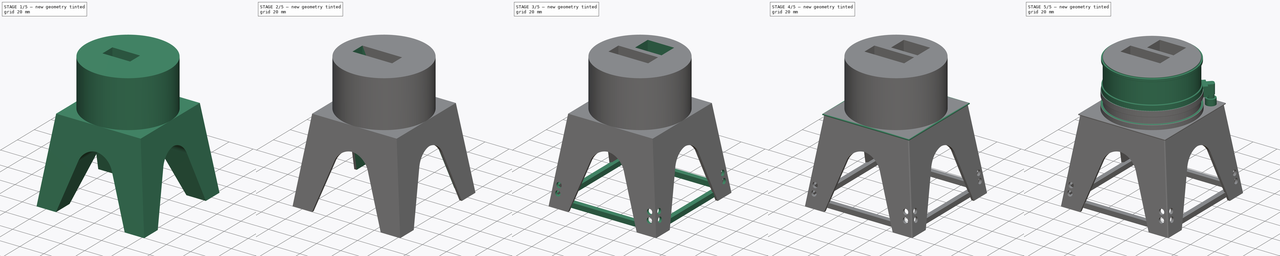
[diagram: build sequence overview — one tinted view per stage of 5, left to right]
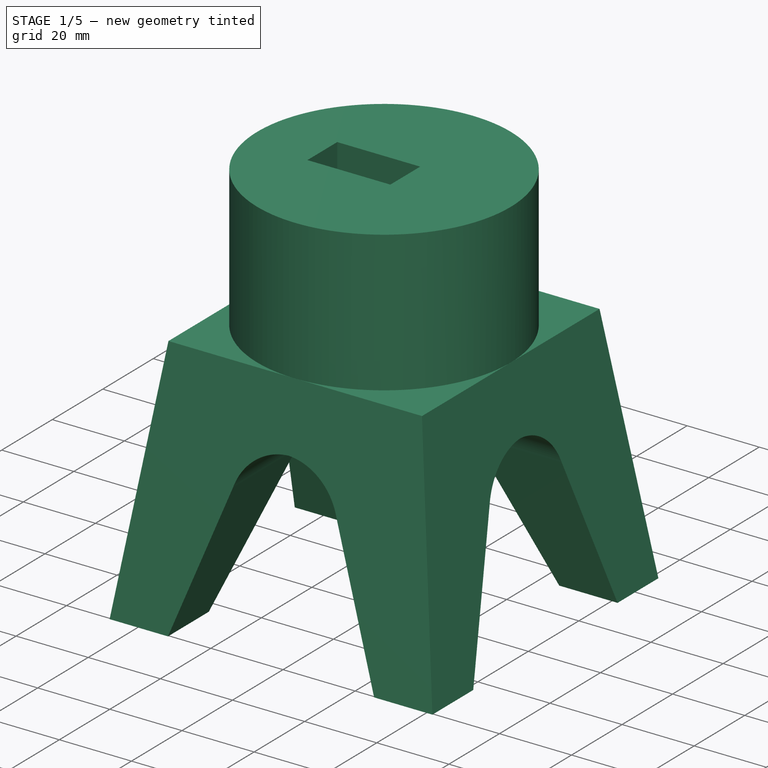
[diagram: stage 1 of 5 — iso view after this stage's code; geometry added in this stage tinted green]
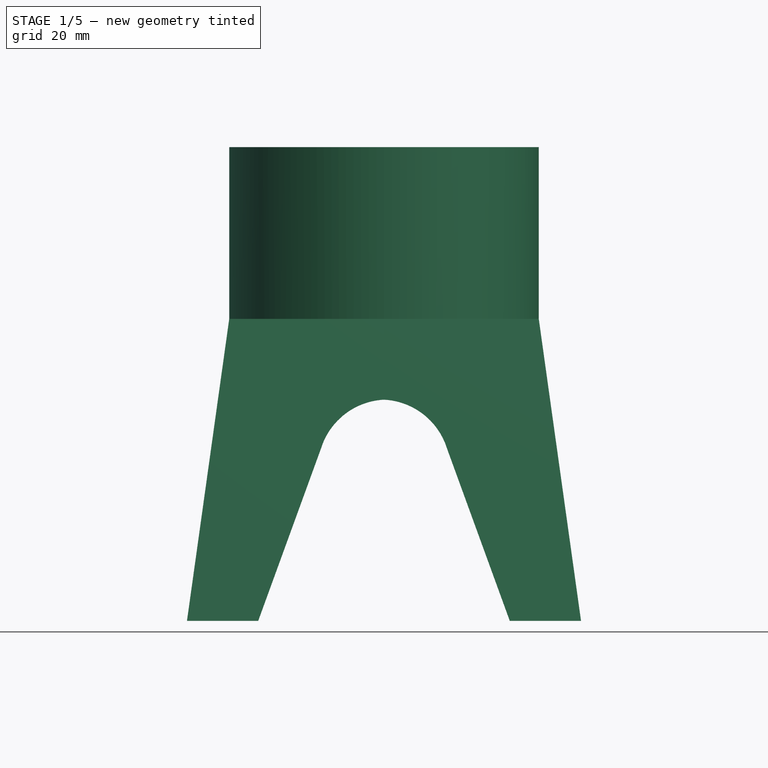
[diagram: stage 1 of 5 — front view after this stage's code; geometry added in this stage tinted green]
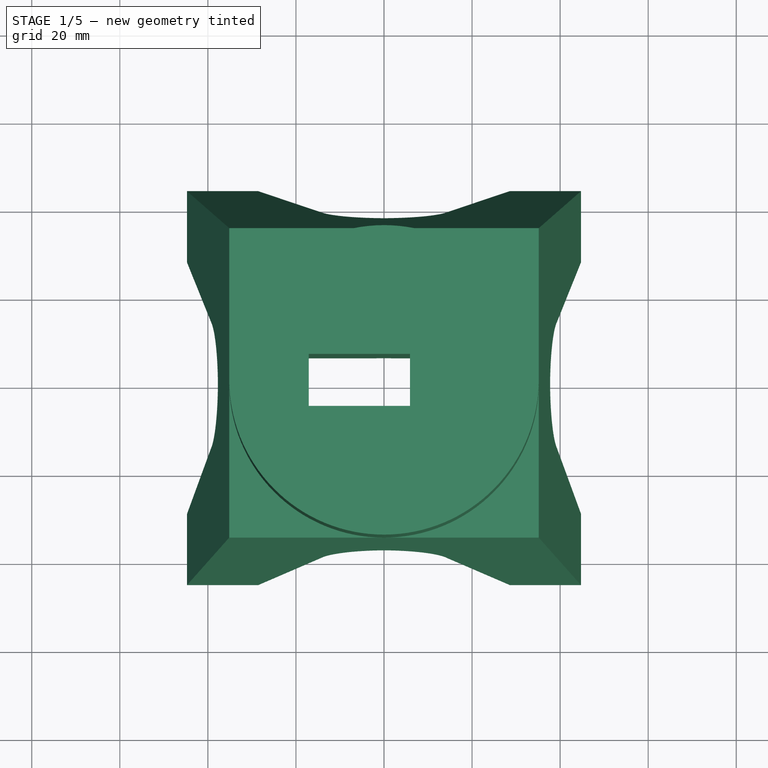
[diagram: stage 1 of 5 — top view after this stage's code; geometry added in this stage tinted green]
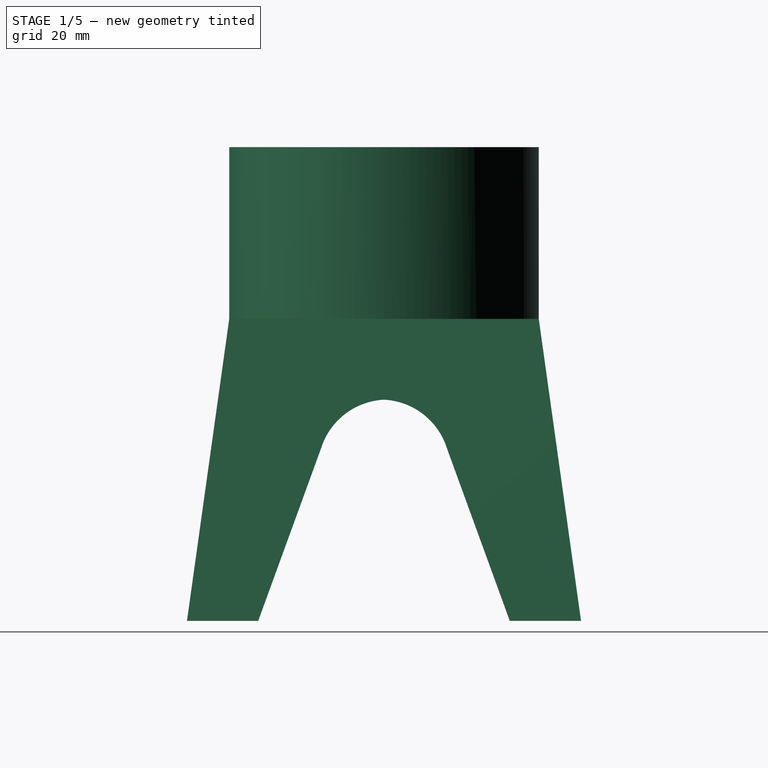
[diagram: stage 1 of 5 — right view after this stage's code; geometry added in this stage tinted green]
FCSTD DOCUMENT  (FreeCAD 1.0R39109 (Git))
Label: FinalsTurretBase
License: All rights reserved
LicenseURL: https://en.wikipedia.org/wiki/All_rights_reserved
objects: Sketcher::SketchObject×21, PartDesign::Pad×9, PartDesign::Pocket×7, PartDesign::PolarPattern×4, PartDesign::Plane×4, PartDesign::Fillet×3, Image::ImagePlane×2, PartDesign::SubtractiveLoft×1, PartDesign::Groove×1, PartDesign::Body×1
note: 118 computed .brp shape members not serialized (recipe doc carries the construction recipe); baked Part::Feature solids carry a one-line shape summary decoded from their .brp

FEATURE [Image::ImagePlane] The_Finals_Screenshot_2025  label="The Finals Screenshot 2025"
  Placement = pos=(0,0,0) rot=(1,0,0;1.5708rad)
  XSize = 753.991
  YSize = 424.123
FEATURE [Image::ImagePlane] The_Finals_Screenshot_2026  label="The Finals Screenshot 2026"
  Placement = pos=(0,0,0) rot=(0.57735,0.57735,0.57735;2.0944rad)
  XSize = 754.24
  YSize = 424.26
FEATURE [Sketcher::SketchObject] Sketch
  ArcFitTolerance = 1e-06
  AttachmentSupport = -> [YZ_Plane]
  FullyConstrained = false
  MakeInternals = false
  MapMode = 5
  Placement = pos=(0,0,0) rot=(0.57735,0.57735,0.57735;2.0944rad)
  sketch-geometry (7):
    g0: LineSegment [constr] StartX=0 StartY=-143.198 StartZ=0 EndX=0 EndY=131.199 EndZ=0
    g1: LineSegment StartX=0 StartY=-58.7183 StartZ=0 EndX=35.148 EndY=-58.7183 EndZ=0
    g2: LineSegment StartX=35.148 StartY=-58.7183 StartZ=0 EndX=44.7448 EndY=-127.308 EndZ=0
    g3: LineSegment StartX=44.7448 StartY=-127.308 StartZ=0 EndX=28.586 EndY=-127.308 EndZ=0
    g4: LineSegment StartX=28.586 StartY=-127.308 StartZ=0 EndX=14.3111 EndY=-88.1703 EndZ=0
    g5: ArcOfCircle CenterX=-0.783438 CenterY=-92.8633 CenterZ=0 NormalX=0 NormalY=0 NormalZ=1 AngleXU=0 Radius=15.8072 StartAngle=0.301432 EndAngle=1.52121
    g6: LineSegment StartX=0 StartY=-77.0755 StartZ=0 EndX=0 EndY=-58.7183 EndZ=0
  constraints (12):
    c: PointOnObject(g0,g-2)
    c: PointOnObject(g0,g-2)
    c: PointOnObject(g1,g0)
    c: Horizontal(g1)
    c: Coincident(g1,g2)
    c: Coincident(g2,g3)
    c: Horizontal(g3)
    c: Coincident(g3,g4)
    c: Coincident(g5,g4)
    c: PointOnObject(g5,g0)
    c: Coincident(g6,g5)
    c: Coincident(g6,g1)
FEATURE [PartDesign::Pad] Pad
  Direction = (1,0,0)
  Length = 51
  Length2 = 10
  Placement = pos=(0,0,0) rot=(1,1,1;2.0944rad)
  Profile = -> Sketch
  ReferenceAxis = -> Sketch [N_Axis]
  Refine = true
  Suppressed = false
  Type = 0
FEATURE [Sketcher::SketchObject] Sketch002
  ArcFitTolerance = 1e-06
  AttachmentSupport = -> [Pad]
  FullyConstrained = false
  MakeInternals = false
  MapMode = 5
  Placement = pos=(0,0,0) rot=(0.57735,0.57735,-0.57735;2.0944rad)
  sketch-geometry (8):
    g0: LineSegment StartX=127.358 StartY=28.586 StartZ=0 EndX=88.1703 EndY=14.3111 EndZ=0
    g1: ArcOfCircle CenterX=92.8633 CenterY=-0.783438 CenterZ=0 NormalX=0 NormalY=0 NormalZ=1 AngleXU=0 Radius=15.8072 StartAngle=1.87223 EndAngle=3.09201
    g2: LineSegment StartX=127.358 StartY=-5.47e-14 StartZ=0 EndX=77.0755 EndY=-5.47e-14 EndZ=0
    g3: LineSegment StartX=127.31 StartY=44.74 StartZ=0 EndX=127.31 EndY=56.73 EndZ=0
    g4: LineSegment StartX=127.31 StartY=56.73 StartZ=0 EndX=56.4588 EndY=56.73 EndZ=0
    g5: LineSegment StartX=56.4588 StartY=56.73 StartZ=0 EndX=56.4588 EndY=34.833 EndZ=0
    g6: LineSegment StartX=127.358 StartY=-5.47e-14 StartZ=0 EndX=127.358 EndY=28.586 EndZ=0
    g7: LineSegment StartX=127.31 StartY=44.74 StartZ=0 EndX=56.4588 EndY=34.833 EndZ=0
  constraints (17):
    c: Coincident(g1,g0)
    c: Coincident(g2,g1)
    c: Horizontal(g2)
    c: Vertical(g3)
    c: Coincident(g4,g3)
    c: Horizontal(g4)
    c: Coincident(g5,g4)
    c: Vertical(g5)
    c: Coincident(g6,g2)
    c: Coincident(g6,g0)
    c: Vertical(g6)
    c: Coincident(g7,g3)
    c: Coincident(g7,g5)
    c: DistanceY(g3,g3) = 11.99
    c: Distance(g4,g-1) = 56.73
    c: Angle(g3,g7) = 1.70972
    c: DistanceX(g-1,g3) = 127.31
FEATURE [PartDesign::Pocket] Pocket
  BaseFeature = -> Pad
  Direction = (0,1,0)
  Length = 60
  Length2 = 5
  Placement = pos=(0,0,0) rot=(1,1,1;2.0944rad)
  Profile = -> Sketch002
  ReferenceAxis = -> Sketch002 [N_Axis]
  Refine = true
  Suppressed = false
  Type = 0
FEATURE [PartDesign::PolarPattern] PolarPattern
  Angle = 360
  Axis = -> Z_Axis
  BaseFeature = -> Pocket
  Mode = 0
  Occurrences = 4
  Offset = 120
  Originals = -> [Pocket]
  Placement = pos=(0,0,0) rot=(1,1,1;2.0944rad)
  Refine = true
  Suppressed = false
  TransformMode = 1
FEATURE [Sketcher::SketchObject] Sketch003
  ArcFitTolerance = 1e-06
  AttachmentSupport = -> [PolarPattern]
  ExternalGeometry = -> [PolarPattern]
  FullyConstrained = true
  MakeInternals = false
  MapMode = 5
  Placement = pos=(0,0,-58.7183) rot=(0,0,-1;1.5708rad)
  sketch-geometry (1):
    g0: Circle CenterX=0 CenterY=0 CenterZ=0 NormalX=0 NormalY=0 NormalZ=1 AngleXU=0 Radius=35.148
  constraints (2):
    c: Coincident(g0,g-1)
    c: PointOnObject(g-10,g0)
FEATURE [PartDesign::Pad] Pad001
  BaseFeature = -> PolarPattern
  Direction = (0,0,1)
  Length = 39
  Length2 = 10
  Placement = pos=(0,0,0) rot=(1,1,1;2.0944rad)
  Profile = -> Sketch003
  ReferenceAxis = -> Sketch003 [N_Axis]
  Refine = true
  Suppressed = false
  Type = 0
FEATURE [Sketcher::SketchObject] Sketch004
  ArcFitTolerance = 1e-06
  AttachmentSupport = -> [Pad001]
  FullyConstrained = false
  MakeInternals = false
  MapMode = 5
  Placement = pos=(0,0,-19.7183) rot=(0,0,-1;1.5708rad)
  sketch-geometry (6):
    g0: LineSegment StartX=-5.9 StartY=5.9 StartZ=0 EndX=-5.9 EndY=-17.1 EndZ=0
    g1: LineSegment StartX=-5.9 StartY=-17.1 StartZ=0 EndX=5.9 EndY=-17.1 EndZ=0
    g2: LineSegment StartX=5.9 StartY=-17.1 StartZ=0 EndX=5.9 EndY=5.9 EndZ=0
    g3: LineSegment StartX=5.9 StartY=5.9 StartZ=0 EndX=-5.9 EndY=5.9 EndZ=0
    g4: LineSegment [constr] StartX=-5.9 StartY=-4.70836 StartZ=0 EndX=0 EndY=-4.70836 EndZ=0
    g5: LineSegment [constr] StartX=0 StartY=-4.70836 StartZ=0 EndX=5.9 EndY=-4.70836 EndZ=0
  constraints (18):
    c: Coincident(g0,g1)
    c: Coincident(g1,g2)
    c: Coincident(g2,g3)
    c: Coincident(g3,g0)
    c: Vertical(g0)
    c: Vertical(g2)
    c: Horizontal(g1)
    c: Horizontal(g3)
    c: PointOnObject(g4,g0)
    c: PointOnObject(g4,g-2)
    c: Horizontal(g4)
    c: Coincident(g5,g4)
    c: PointOnObject(g5,g2)
    c: Horizontal(g5)
    c: Equal(g4,g5)
    c: DistanceX(g3,g3) = 11.8
    c: DistanceY(g2,g2) = 23
    c: Distance(g-1,g3) = 5.9
FEATURE [PartDesign::Pocket] Pocket001
  BaseFeature = -> Pad001
  Direction = (0,0,-1)
  Length = 5
  Length2 = 5
  Placement = pos=(0,0,0) rot=(1,1,1;2.0944rad)
  Profile = -> Sketch004
  ReferenceAxis = -> Sketch004 [N_Axis]
  Refine = true
  Suppressed = false
  Type = 1
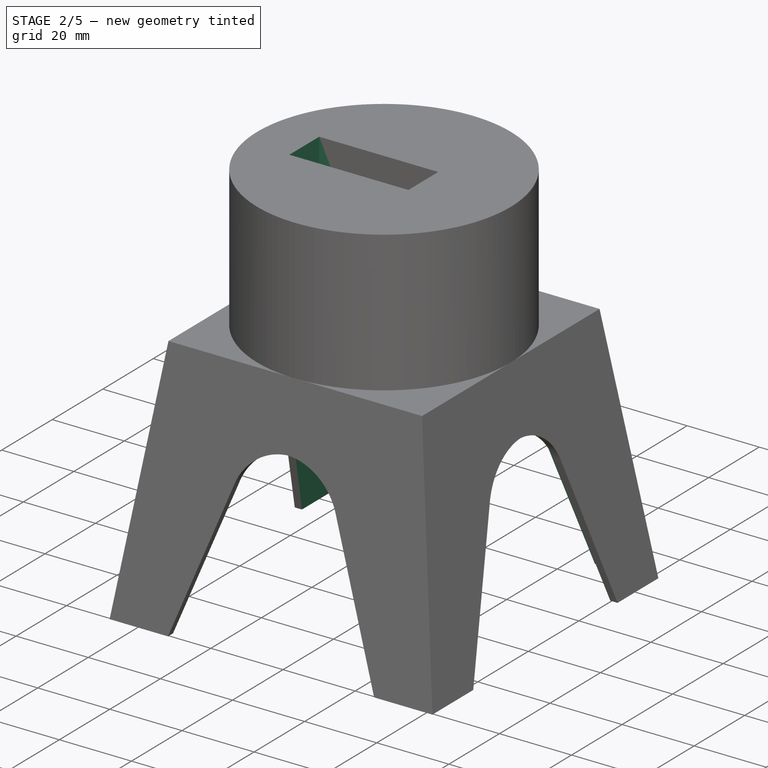
[diagram: stage 2 of 5 — iso view after this stage's code; geometry added in this stage tinted green]
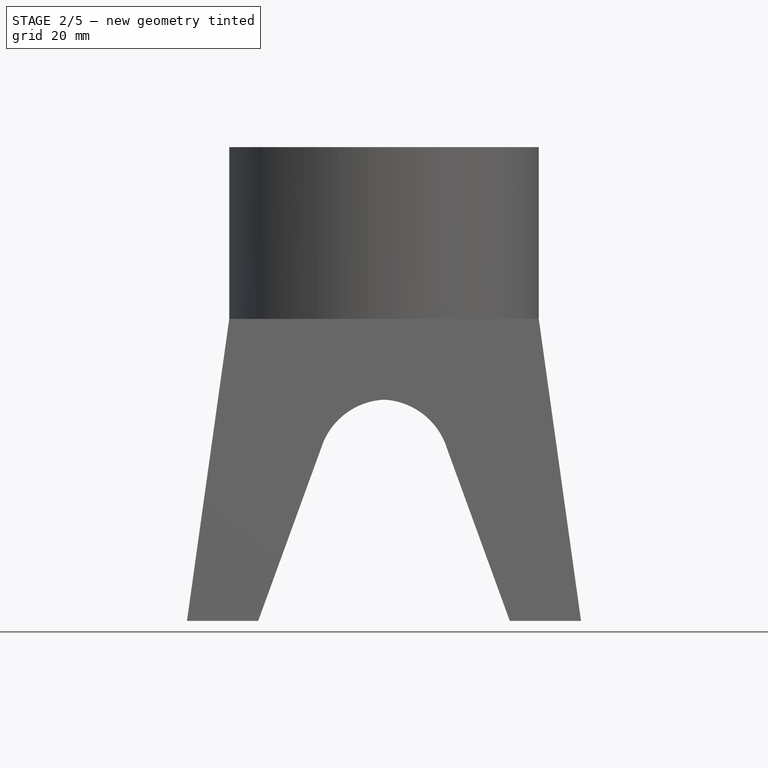
[diagram: stage 2 of 5 — front view after this stage's code; geometry added in this stage tinted green]
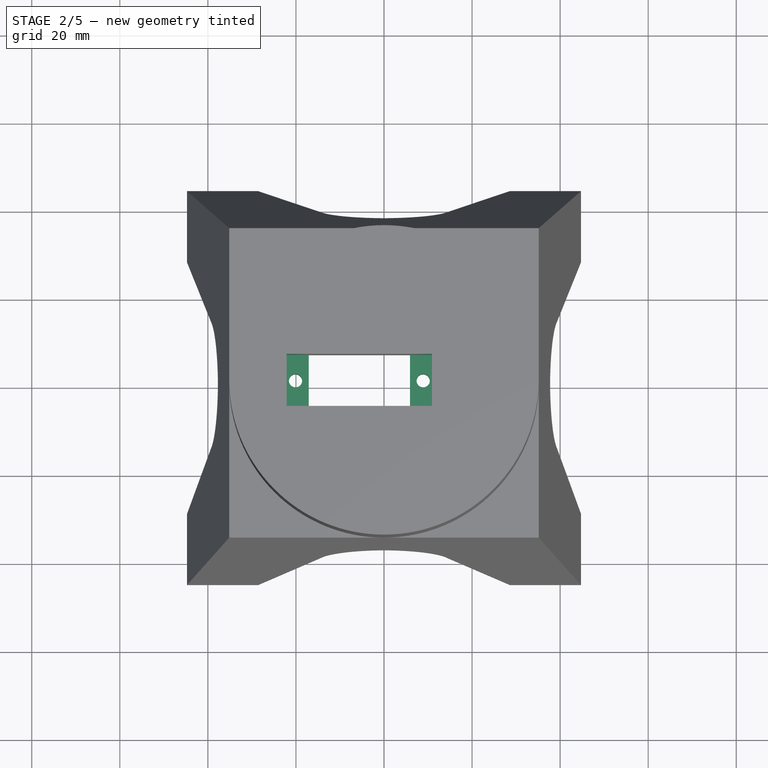
[diagram: stage 2 of 5 — top view after this stage's code; geometry added in this stage tinted green]
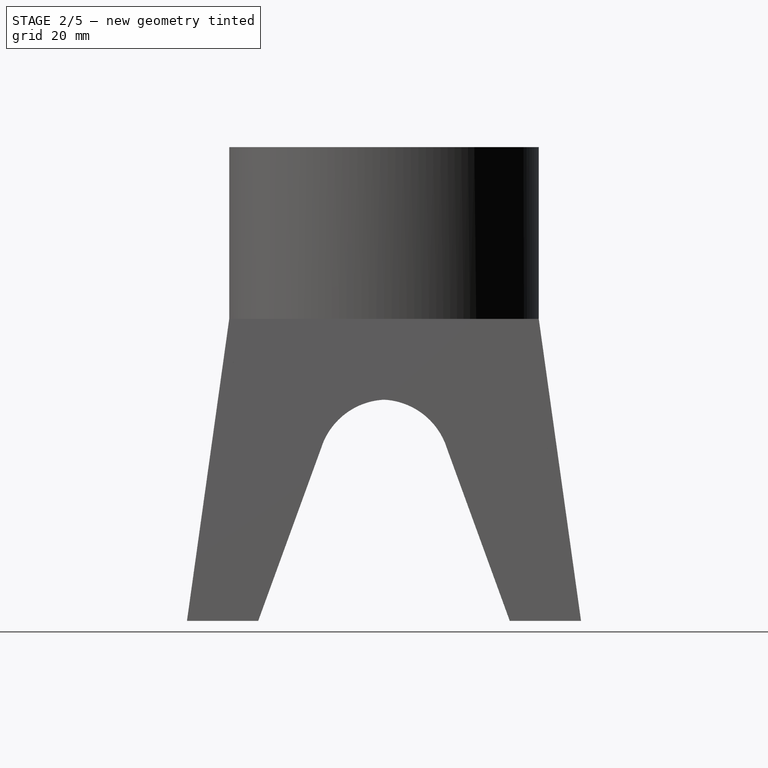
[diagram: stage 2 of 5 — right view after this stage's code; geometry added in this stage tinted green]
FEATURE [Sketcher::SketchObject] Sketch005
  ArcFitTolerance = 1e-06
  AttachmentSupport = -> [Pocket001]
  ExternalGeometry = -> [Pocket001]
  FullyConstrained = true
  MakeInternals = false
  MapMode = 5
  Placement = pos=(0,0,-19.7183) rot=(0,0,-1;1.5708rad)
  sketch-geometry (8):
    g0: LineSegment StartX=-5.9 StartY=5.9 StartZ=0 EndX=5.9 EndY=5.9 EndZ=0
    g1: LineSegment StartX=5.9 StartY=5.9 StartZ=0 EndX=5.9 EndY=10.9 EndZ=0
    g2: LineSegment StartX=5.9 StartY=10.9 StartZ=0 EndX=-5.9 EndY=10.9 EndZ=0
    g3: LineSegment StartX=-5.9 StartY=10.9 StartZ=0 EndX=-5.9 EndY=5.9 EndZ=0
    g4: LineSegment StartX=-5.9 StartY=-17.1 StartZ=0 EndX=-5.9 EndY=-22.1 EndZ=0
    g5: LineSegment StartX=-5.9 StartY=-22.1 StartZ=0 EndX=5.9 EndY=-22.1 EndZ=0
    g6: LineSegment StartX=5.9 StartY=-22.1 StartZ=0 EndX=5.9 EndY=-17.1 EndZ=0
    g7: LineSegment StartX=5.9 StartY=-17.1 StartZ=0 EndX=-5.9 EndY=-17.1 EndZ=0
  constraints (20):
    c: Coincident(g0,g1)
    c: Coincident(g1,g2)
    c: Coincident(g2,g3)
    c: Coincident(g3,g0)
    c: Horizontal(g0)
    c: Horizontal(g2)
    c: Vertical(g3)
    c: Coincident(g0,g-3)
    c: Coincident(g4,g5)
    c: Coincident(g5,g6)
    c: Coincident(g6,g7)
    c: Coincident(g7,g4)
    c: Vertical(g4)
    c: Horizontal(g5)
    c: Horizontal(g7)
    c: Coincident(g4,g-4)
    c: Tangent(g1,g-5)
    c: Tangent(g6,g-5)
    c: Distance(g0,g2) = 5
    c: Distance(g5,g7) = 5
FEATURE [PartDesign::Pocket] Pocket002
  BaseFeature = -> Pocket001
  Direction = (0,0,-1)
  Length = 10.65
  Length2 = 5
  Placement = pos=(0,0,0) rot=(1,1,1;2.0944rad)
  Profile = -> Sketch005
  ReferenceAxis = -> Sketch005 [N_Axis]
  Refine = true
  Suppressed = false
  Type = 0
FEATURE [Sketcher::SketchObject] Sketch006
  ArcFitTolerance = 1e-06
  AttachmentSupport = -> [Pocket002]
  ExternalGeometry = -> [Pocket002]
  FullyConstrained = true
  MakeInternals = false
  MapMode = 5
  Placement = pos=(0,0,-30.3683) rot=(0,0,-1;1.5708rad)
  sketch-geometry (2):
    g0: Circle CenterX=0 CenterY=8.9 CenterZ=0 NormalX=0 NormalY=0 NormalZ=1 AngleXU=0 Radius=1.5
    g1: Circle CenterX=0 CenterY=-20.1 CenterZ=0 NormalX=0 NormalY=0 NormalZ=1 AngleXU=0 Radius=1.5
  constraints (6):
    c: PointOnObject(g0,g-2)
    c: PointOnObject(g1,g-2)
    c: Equal(g1,g0)
    c: Diameter(g0) = 3
    c: DistanceY(g1,g0) = 29
    c: Distance(g1,g-4) = 3
FEATURE [PartDesign::Pocket] Pocket003
  BaseFeature = -> Pocket002
  Direction = (0,0,-1)
  Length = 7
  Length2 = 5
  Placement = pos=(0,0,0) rot=(1,1,1;2.0944rad)
  Profile = -> Sketch006
  ReferenceAxis = -> Sketch006 [N_Axis]
  Refine = true
  Suppressed = false
  Type = 0
FEATURE [Sketcher::SketchObject] Sketch008
  ArcFitTolerance = 1e-06
  AttachmentSupport = -> [Pocket003]
  ExternalGeometry = -> [Pocket003]
  FullyConstrained = true
  MakeInternals = false
  MapMode = 5
  Placement = pos=(0,0,-19.7183) rot=(0,0,-1;1.5708rad)
  sketch-geometry (1):
    g0: Circle CenterX=0 CenterY=0 CenterZ=0 NormalX=0 NormalY=0 NormalZ=1 AngleXU=0 Radius=33.148
  constraints (3):
    c: Diameter(g-3) = 70.296
    c: Coincident(g0,g-1)
    c: Distance(g-3,g0) = 2
FEATURE [Sketcher::SketchObject] Sketch009
  ArcFitTolerance = 1e-06
  AttachmentSupport = -> [Pocket003]
  FullyConstrained = false
  MakeInternals = false
  MapMode = 5
  Placement = pos=(0,2.8e-14,-127.308) rot=(0.707107,0.707107,0;3.14159rad)
  sketch-geometry (1):
    g0: Circle CenterX=0 CenterY=0 CenterZ=0 NormalX=0 NormalY=0 NormalZ=1 AngleXU=0 Radius=33.148
  constraints (1):
    c: Coincident(g0,g-1)
FEATURE [PartDesign::Pocket] Pocket004
  BaseFeature = -> Pocket003
  Direction = (0,0,1)
  Length = 90
  Length2 = 5
  Placement = pos=(0,0,0) rot=(1,1,1;2.0944rad)
  Profile = -> Sketch009
  ReferenceAxis = -> Sketch009 [N_Axis]
  Refine = true
  Suppressed = false
  Type = 0
FEATURE [Sketcher::SketchObject] Sketch010
  ArcFitTolerance = 1e-06
  AttachmentSupport = -> [Pocket004]
  ExternalGeometry = -> [Pocket004]
  FullyConstrained = true
  MakeInternals = false
  MapMode = 5
  Placement = pos=(2.8e-14,0,-127.308) rot=(0.707107,0.707107,0;3.14159rad)
  sketch-geometry (4):
    g0: LineSegment StartX=-42.7397 StartY=42.7448 StartZ=0 EndX=-42.7397 EndY=-42.7448 EndZ=0
    g1: LineSegment StartX=-42.7397 StartY=-42.7448 StartZ=0 EndX=42.7448 EndY=-42.7448 EndZ=0
    g2: LineSegment StartX=42.7448 StartY=-42.7448 StartZ=0 EndX=42.7448 EndY=42.7448 EndZ=0
    g3: LineSegment StartX=42.7448 StartY=42.7448 StartZ=0 EndX=-42.7397 EndY=42.7448 EndZ=0
  constraints (12):
    c: Coincident(g0,g1)
    c: Coincident(g1,g2)
    c: Coincident(g2,g3)
    c: Coincident(g3,g0)
    c: Vertical(g0)
    c: Vertical(g2)
    c: Horizontal(g1)
    c: Horizontal(g3)
    c: Distance(g-10,g3) = 2
    c: Distance(g-9,g0) = 2
    c: Distance(g-4,g2) = 2
    c: Distance(g-6,g1) = 2
FEATURE [PartDesign::Plane] DatumPlane
  AttachmentOffset = pos=(0,0,-2) rot=(0,0,1;0rad)
  AttachmentSupport = -> [Pocket004]
  Length = 107.388
  MapMode = 5
  Placement = pos=(0,0,-60.7183) rot=(0,0,-1;1.5708rad)
  ResizeMode = 0
  Width = 107.388
FEATURE [Sketcher::SketchObject] Sketch011
  ArcFitTolerance = 1e-06
  AttachmentSupport = -> [DatumPlane]
  ExternalGeometry = -> [Pocket004]
  FullyConstrained = true
  MakeInternals = false
  MapMode = 5
  Placement = pos=(0,0,-60.7183) rot=(0,0,-1;1.5708rad)
  sketch-geometry (4):
    g0: LineSegment StartX=-33.148 StartY=33.1489 StartZ=0 EndX=-33.148 EndY=-33.1489 EndZ=0
    g1: LineSegment StartX=-33.148 StartY=-33.1489 StartZ=0 EndX=33.1489 EndY=-33.1489 EndZ=0
    g2: LineSegment StartX=33.1489 StartY=-33.1489 StartZ=0 EndX=33.1489 EndY=33.1489 EndZ=0
    g3: LineSegment StartX=33.1489 StartY=33.1489 StartZ=0 EndX=-33.148 EndY=33.1489 EndZ=0
  constraints (12):
    c: Coincident(g0,g1)
    c: Coincident(g1,g2)
    c: Coincident(g2,g3)
    c: Coincident(g3,g0)
    c: Vertical(g0)
    c: Vertical(g2)
    c: Horizontal(g1)
    c: Horizontal(g3)
    c: Distance(g-3,g3) = 2
    c: Distance(g-4,g0) = 2
    c: Distance(g-9,g2) = 2
    c: Distance(g-7,g1) = 2
FEATURE [PartDesign::SubtractiveLoft] SubtractiveLoft
  BaseFeature = -> Pocket004
  Closed = false
  Placement = pos=(0,0,0) rot=(1,1,1;2.0944rad)
  Profile = -> Sketch010
  Refine = true
  Ruled = false
  Sections = -> [Sketch011]
  Suppressed = false
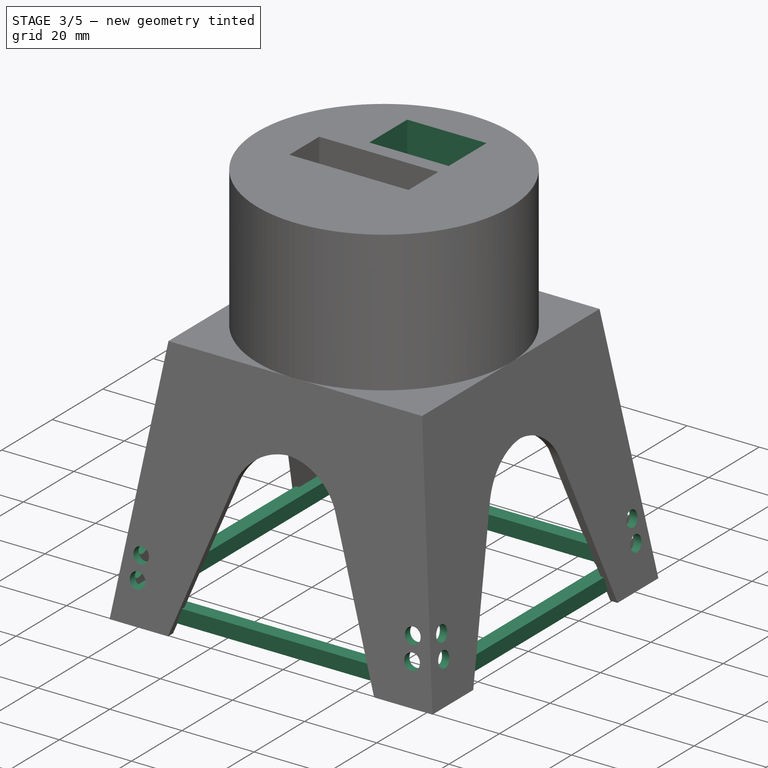
[diagram: stage 3 of 5 — iso view after this stage's code; geometry added in this stage tinted green]
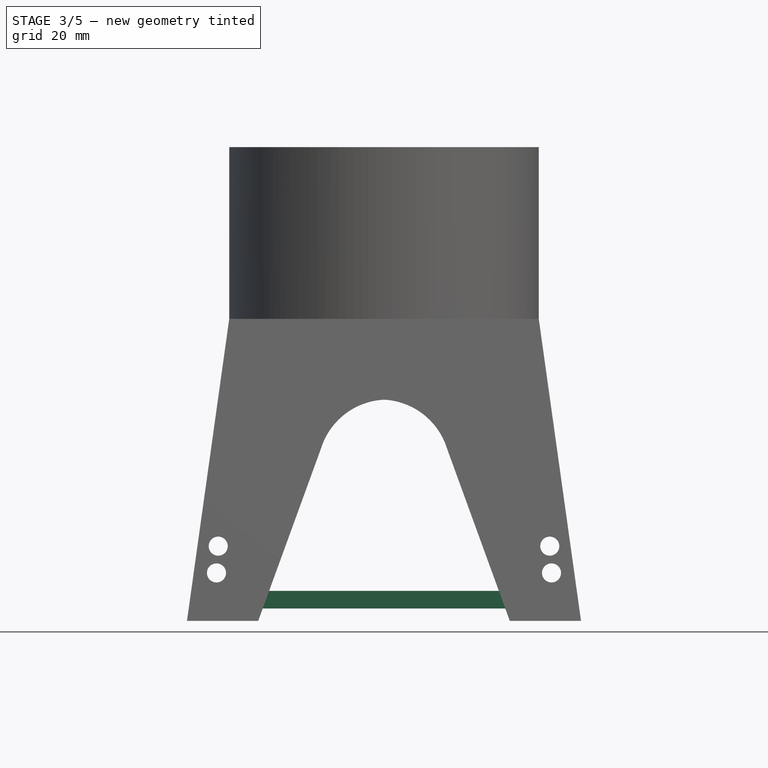
[diagram: stage 3 of 5 — front view after this stage's code; geometry added in this stage tinted green]
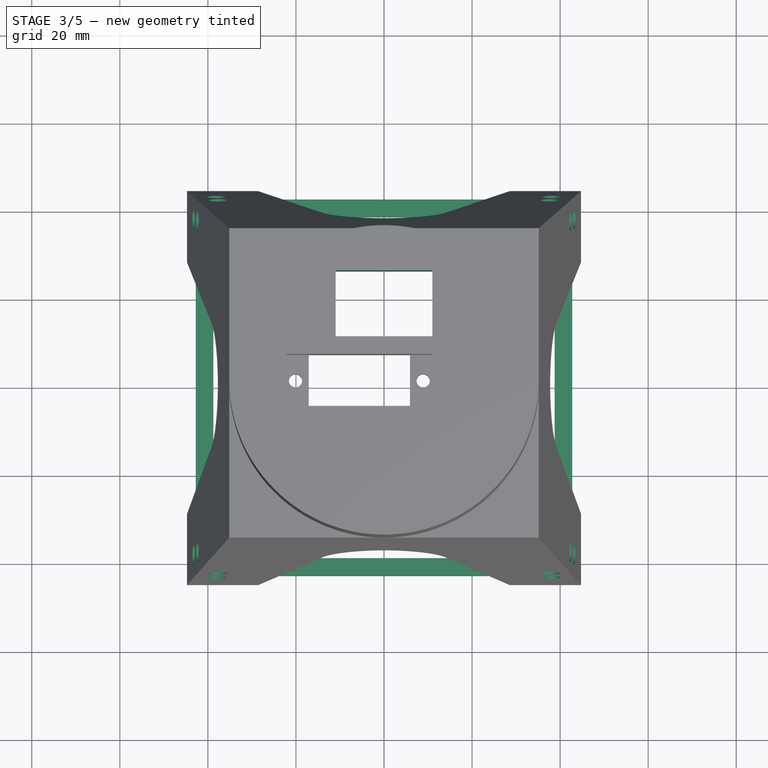
[diagram: stage 3 of 5 — top view after this stage's code; geometry added in this stage tinted green]
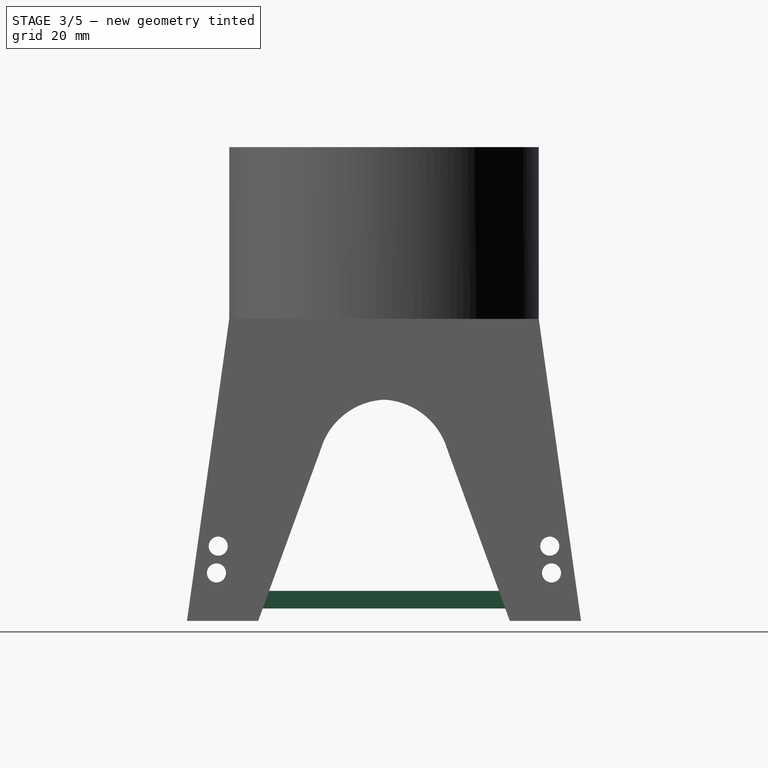
[diagram: stage 3 of 5 — right view after this stage's code; geometry added in this stage tinted green]
FEATURE [Sketcher::SketchObject] Sketch012
  ArcFitTolerance = 1e-06
  AttachmentSupport = -> [SubtractiveLoft]
  ExternalGeometry = -> [SubtractiveLoft]
  FullyConstrained = false
  MakeInternals = false
  MapMode = 5
  Placement = pos=(0,0,-19.7183) rot=(0,0,-1;1.5708rad)
  sketch-geometry (6):
    g0: LineSegment StartX=-24.9 StartY=11 StartZ=0 EndX=-24.9 EndY=-11 EndZ=0
    g1: LineSegment StartX=-24.9 StartY=-11 StartZ=0 EndX=-9.9 EndY=-11 EndZ=0
    g2: LineSegment StartX=-9.9 StartY=-11 StartZ=0 EndX=-9.9 EndY=11 EndZ=0
    g3: LineSegment StartX=-9.9 StartY=11 StartZ=0 EndX=-24.9 EndY=11 EndZ=0
    g4: LineSegment [constr] StartX=-14.9819 StartY=11 StartZ=0 EndX=-14.9819 EndY=0 EndZ=0
    g5: LineSegment [constr] StartX=-14.9819 StartY=0 StartZ=0 EndX=-14.9819 EndY=-11 EndZ=0
  constraints (18):
    c: Coincident(g0,g1)
    c: Coincident(g1,g2)
    c: Coincident(g2,g3)
    c: Coincident(g3,g0)
    c: Vertical(g0)
    c: Vertical(g2)
    c: Horizontal(g1)
    c: Horizontal(g3)
    c: Distance(g-3,g2) = 4
    c: Distance(g2,g0) = 15
    c: Distance(g3,g1) = 22
    c: PointOnObject(g4,g3)
    c: PointOnObject(g4,g-1)
    c: Vertical(g4)
    c: Coincident(g5,g4)
    c: PointOnObject(g5,g1)
    c: Vertical(g5)
    c: Equal(g5,g4)
FEATURE [PartDesign::Pocket] Pocket005
  BaseFeature = -> SubtractiveLoft
  Direction = (0,0,-1)
  Length = 5
  Length2 = 5
  Placement = pos=(0,0,0) rot=(1,1,1;2.0944rad)
  Profile = -> Sketch012
  ReferenceAxis = -> Sketch012 [N_Axis]
  Refine = true
  Suppressed = false
  Type = 1
FEATURE [Sketcher::SketchObject] Sketch014
  ArcFitTolerance = 1e-06
  AttachmentSupport = -> [XZ_Plane]
  FullyConstrained = true
  MakeInternals = false
  MapMode = 5
  Placement = pos=(0,0,0) rot=(1,0,0;1.5708rad)
  sketch-geometry (4):
    g0: LineSegment StartX=-42.7397 StartY=-120.508 StartZ=0 EndX=-42.7397 EndY=-124.508 EndZ=0
    g1: LineSegment StartX=-42.7397 StartY=-124.508 StartZ=0 EndX=-38.7397 EndY=-124.508 EndZ=0
    g2: LineSegment StartX=-38.7397 StartY=-124.508 StartZ=0 EndX=-38.7397 EndY=-120.508 EndZ=0
    g3: LineSegment StartX=-38.7397 StartY=-120.508 StartZ=0 EndX=-42.7397 EndY=-120.508 EndZ=0
  constraints (12):
    c: Coincident(g0,g1)
    c: Coincident(g1,g2)
    c: Coincident(g2,g3)
    c: Coincident(g3,g0)
    c: Vertical(g0)
    c: Vertical(g2)
    c: Horizontal(g1)
    c: Horizontal(g3)
    c: DistanceX(g3,g3) = 4
    c: Equal(g3,g2)
    c: Distance(g-3,g1) = 2.8
    c: Distance(g-3,g0) = 2
FEATURE [Sketcher::SketchObject] Sketch016
  ArcFitTolerance = 1e-06
  AttachmentSupport = -> [YZ_Plane]
  FullyConstrained = false
  MakeInternals = false
  MapMode = 5
  Placement = pos=(0,0,0) rot=(0.57735,0.57735,0.57735;2.0944rad)
  sketch-geometry (2):
    g0: Circle CenterX=38.0442 CenterY=-116.421 CenterZ=0 NormalX=0 NormalY=0 NormalZ=1 AngleXU=0 Radius=2.16195
    g1: Circle CenterX=37.6499 CenterY=-110.338 CenterZ=0 NormalX=0 NormalY=0 NormalZ=1 AngleXU=0 Radius=2.16195
  constraints (1):
    c: Equal(g0,g1)
FEATURE [PartDesign::Plane] DatumPlane002
  AttachmentOffset = pos=(0,0,0) rot=(0,1,0;0.785398rad)
  AttachmentSupport = -> [XZ_Plane]
  Length = 154.325
  MapMode = 5
  Placement = pos=(0,0,0) rot=(0.862856,0.357407,0.357407;1.71777rad)
  ResizeMode = 0
  Width = 180.075
FEATURE [PartDesign::Pad] Pad003
  BaseFeature = -> Pocket005
  Direction = (0,-1,2e-16)
  Length = 10
  Length2 = 10
  Placement = pos=(0,0,0) rot=(1,1,1;2.0944rad)
  Profile = -> Sketch014
  ReferenceAxis = -> Sketch014 [N_Axis]
  Refine = true
  Suppressed = false
  Type = 3
  UpToFace = -> Pocket005 [Face32]
FEATURE [PartDesign::PolarPattern] PolarPattern001
  Angle = 360
  Axis = -> Z_Axis
  BaseFeature = -> Pad003
  Mode = 0
  Occurrences = 4
  Offset = 120
  Originals = -> [Pad003]
  Placement = pos=(0,0,0) rot=(1,1,1;2.0944rad)
  Refine = true
  Suppressed = false
  TransformMode = 0
FEATURE [Sketcher::SketchObject] Sketch015
  ArcFitTolerance = 1e-06
  AttachmentSupport = -> [PolarPattern001]
  FullyConstrained = true
  MakeInternals = false
  MapMode = 5
  Placement = pos=(0,9e-15,0) rot=(0.57735,0.57735,0.57735;4.18879rad)
  sketch-geometry (4):
    g0: LineSegment StartX=-124.508 StartY=-38.7397 StartZ=0 EndX=-124.508 EndY=-42.7397 EndZ=0
    g1: LineSegment StartX=-124.508 StartY=-42.7397 StartZ=0 EndX=-120.508 EndY=-42.7397 EndZ=0
    g2: LineSegment StartX=-120.508 StartY=-42.7397 StartZ=0 EndX=-120.508 EndY=-38.7397 EndZ=0
    g3: LineSegment StartX=-120.508 StartY=-38.7397 StartZ=0 EndX=-124.508 EndY=-38.7397 EndZ=0
  constraints (10):
    c: Coincident(g0,g1)
    c: Coincident(g1,g2)
    c: Coincident(g2,g3)
    c: Coincident(g3,g0)
    c: Vertical(g0)
    c: Vertical(g2)
    c: Horizontal(g1)
    c: Horizontal(g3)
    c: Coincident(g0,g-4)
    c: Coincident(g1,g-6)
FEATURE [PartDesign::Pad] Pad004
  BaseFeature = -> PolarPattern001
  Direction = (0,1,0)
  Length = 10
  Length2 = 10
  Placement = pos=(0,0,0) rot=(1,1,1;2.0944rad)
  Profile = -> Sketch015
  ReferenceAxis = -> Sketch015 [N_Axis]
  Refine = true
  Suppressed = false
  Type = 3
  UpToFace = -> PolarPattern001 [?Face36]
FEATURE [PartDesign::PolarPattern] PolarPattern002
  Angle = 360
  Axis = -> Z_Axis
  BaseFeature = -> Pad004
  Mode = 0
  Occurrences = 4
  Offset = 120
  Originals = -> [Pad004]
  Placement = pos=(0,0,0) rot=(1,1,1;2.0944rad)
  Refine = true
  Suppressed = false
  TransformMode = 0
FEATURE [PartDesign::Pocket] Pocket006
  BaseFeature = -> PolarPattern002
  Direction = (-1,0,0)
  Length = 50
  Length2 = 50
  Placement = pos=(0,0,0) rot=(1,1,1;2.0944rad)
  Profile = -> Sketch016
  ReferenceAxis = -> Sketch016 [N_Axis]
  Refine = true
  Suppressed = false
  Type = 4
FEATURE [PartDesign::PolarPattern] PolarPattern003
  Angle = 360
  Axis = -> Z_Axis
  BaseFeature = -> Pocket006
  Mode = 0
  Occurrences = 4
  Offset = 120
  Originals = -> [Pocket006]
  Placement = pos=(0,0,0) rot=(1,1,1;2.0944rad)
  Refine = true
  Suppressed = false
  TransformMode = 0
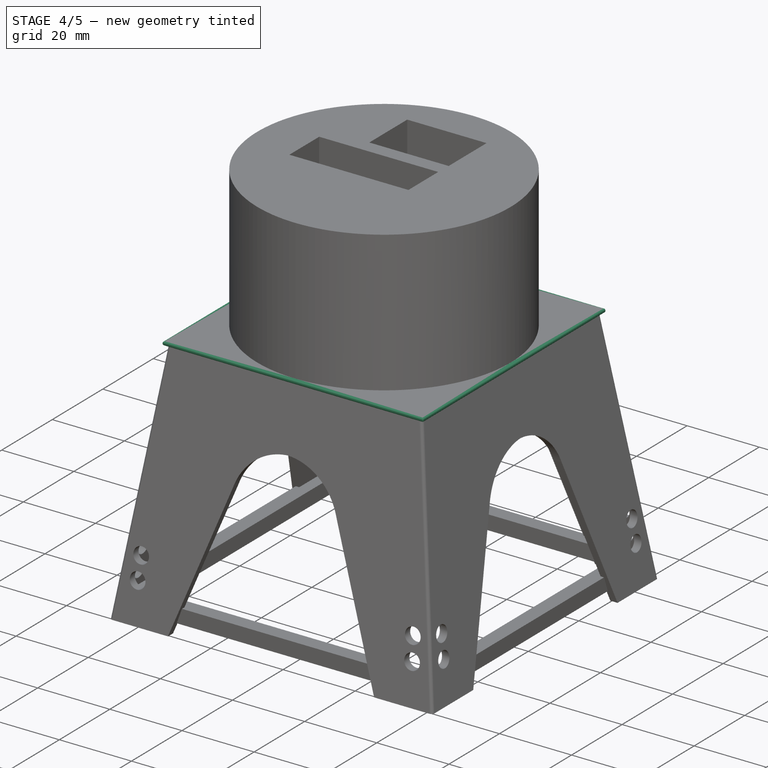
[diagram: stage 4 of 5 — iso view after this stage's code; geometry added in this stage tinted green]
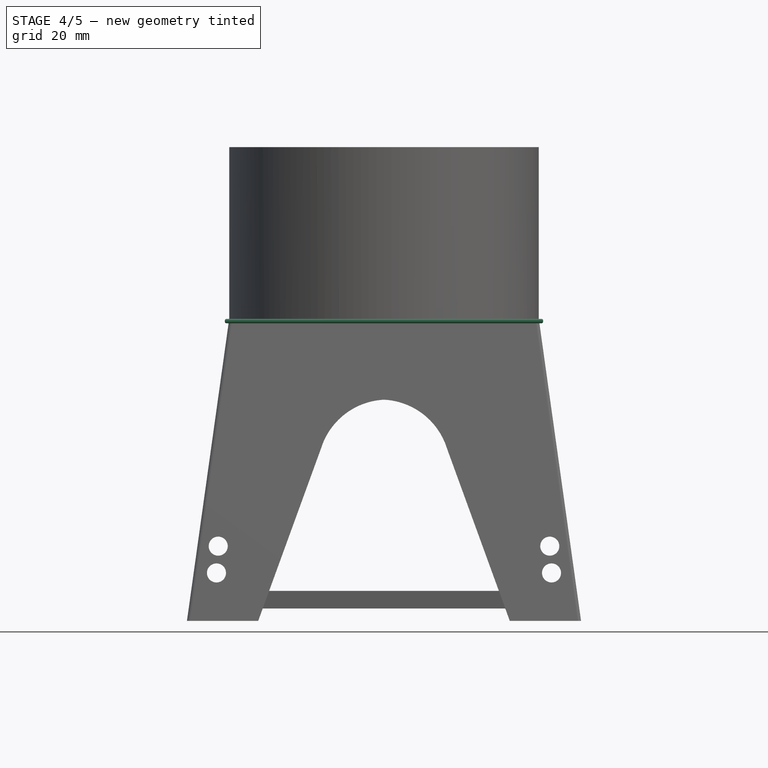
[diagram: stage 4 of 5 — front view after this stage's code; geometry added in this stage tinted green]
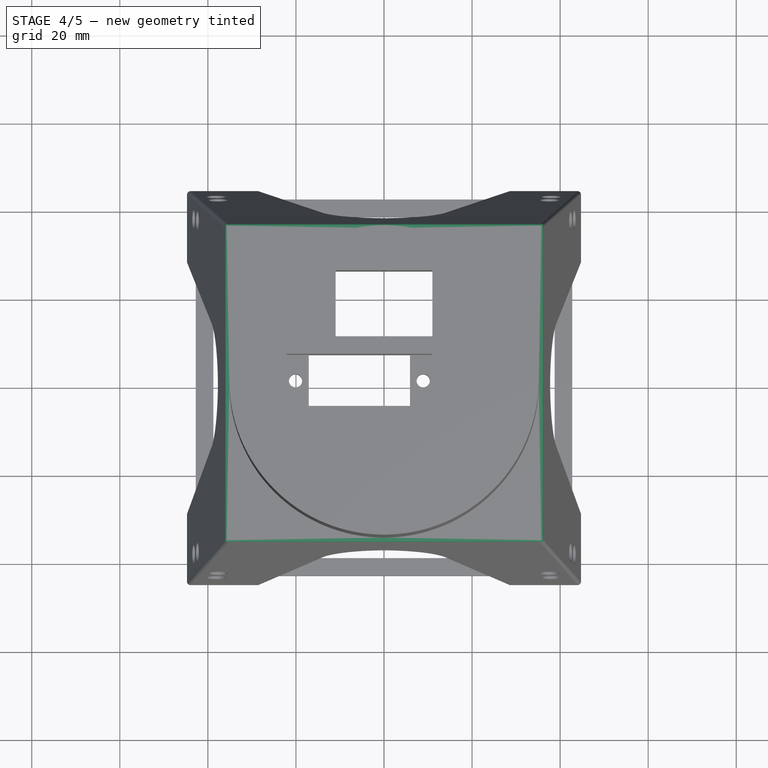
[diagram: stage 4 of 5 — top view after this stage's code; geometry added in this stage tinted green]
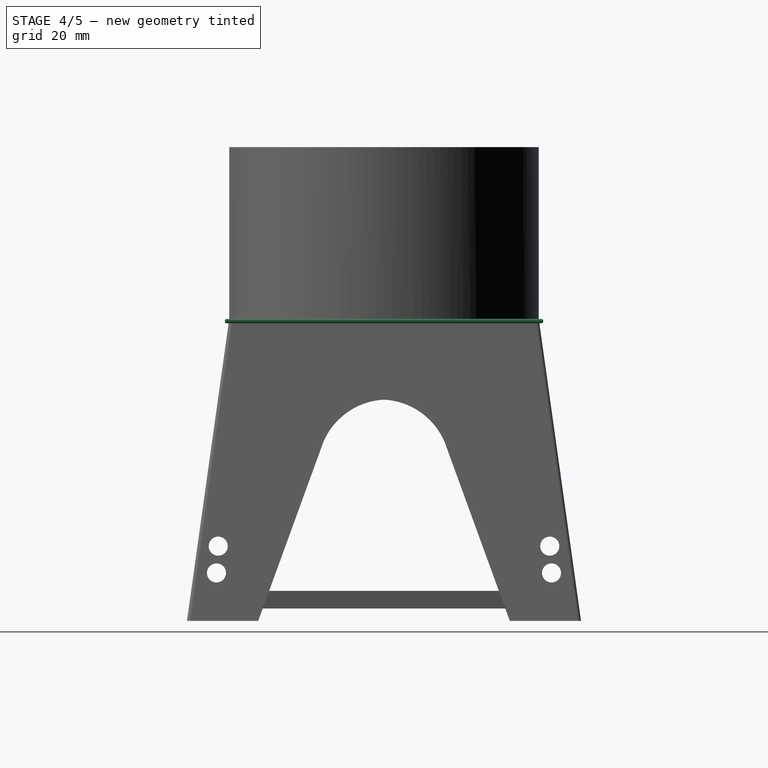
[diagram: stage 4 of 5 — right view after this stage's code; geometry added in this stage tinted green]
FEATURE [PartDesign::Plane] DatumPlane001
  AttachmentOffset = pos=(0,0,-1) rot=(0,0,1;0rad)
  AttachmentSupport = -> [PolarPattern003]
  Length = 107.388
  MapMode = 5
  Placement = pos=(0,0,-59.7183) rot=(0,0,-1;1.5708rad)
  ResizeMode = 0
  Width = 107.388
FEATURE [Sketcher::SketchObject] Sketch017
  ArcFitTolerance = 1e-06
  AttachmentSupport = -> [DatumPlane001]
  ExternalGeometry = -> [PolarPattern003]
  FullyConstrained = true
  MakeInternals = false
  MapMode = 5
  Placement = pos=(0,0,-59.7183) rot=(0,0,-1;1.5708rad)
  sketch-geometry (5):
    g0: LineSegment StartX=-36.148 StartY=36.1489 StartZ=0 EndX=-36.148 EndY=-36.1489 EndZ=0
    g1: LineSegment StartX=-36.148 StartY=-36.1489 StartZ=0 EndX=36.1489 EndY=-36.1489 EndZ=0
    g2: LineSegment StartX=36.1489 StartY=-36.1489 StartZ=0 EndX=36.1489 EndY=36.1489 EndZ=0
    g3: LineSegment StartX=36.1489 StartY=36.1489 StartZ=0 EndX=-36.148 EndY=36.1489 EndZ=0
    g4: Circle CenterX=0 CenterY=0 CenterZ=0 NormalX=0 NormalY=0 NormalZ=1 AngleXU=0 Radius=35.148
  constraints (14):
    c: Coincident(g0,g1)
    c: Coincident(g1,g2)
    c: Coincident(g2,g3)
    c: Coincident(g3,g0)
    c: Vertical(g0)
    c: Vertical(g2)
    c: Horizontal(g1)
    c: Horizontal(g3)
    c: Distance(g0,g-10) = 1
    c: Distance(g3,g-3) = 1
    c: Distance(g2,g-5) = 1
    c: Distance(g-7,g1) = 1
    c: Coincident(g4,g-1)
    c: Tangent(g-10,g4) = 1.5708
FEATURE [PartDesign::Pad] Pad005
  BaseFeature = -> PolarPattern003
  Direction = (0,0,1)
  Length = 1
  Length2 = 10
  Placement = pos=(0,0,0) rot=(1,1,1;2.0944rad)
  Profile = -> Sketch017
  ReferenceAxis = -> Sketch017 [N_Axis]
  Refine = true
  Suppressed = false
  Type = 0
FEATURE [PartDesign::Fillet] Fillet
  Base = -> Pad005 [Edge308,Edge301,Edge328,Edge318]
  BaseFeature = -> Pad005
  Placement = pos=(0,0,0) rot=(1,1,1;2.0944rad)
  Radius = 0.8
  Refine = true
  SupportTransform = false
  Suppressed = false
  UseAllEdges = false
FEATURE [PartDesign::Fillet] Fillet001
  Base = -> Fillet [Edge19,Edge95,Edge17,Edge91,Edge18,Edge93,Edge20,Edge96]
  BaseFeature = -> Fillet
  Placement = pos=(0,0,0) rot=(1,1,1;2.0944rad)
  Radius = 0.4
  Refine = true
  SupportTransform = false
  Suppressed = false
  UseAllEdges = false
FEATURE [PartDesign::Fillet] Fillet002
  Base = -> Fillet001 [Edge99,Edge97,Edge100,Edge103]
  BaseFeature = -> Fillet001
  Placement = pos=(0,0,0) rot=(1,1,1;2.0944rad)
  Radius = 0.2
  Refine = true
  SupportTransform = false
  Suppressed = false
  UseAllEdges = false
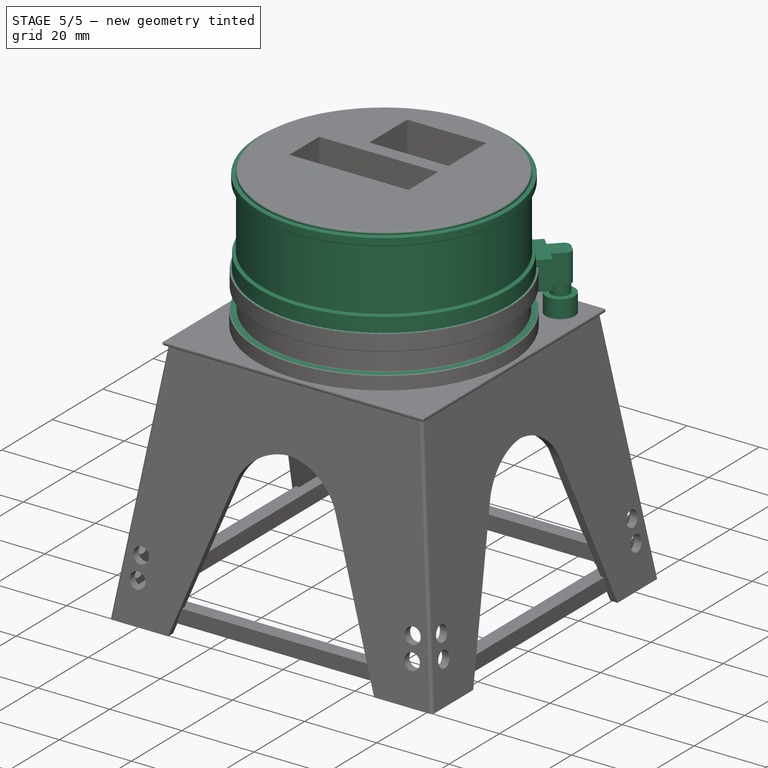
[diagram: stage 5 of 5 — iso view after this stage's code; geometry added in this stage tinted green]
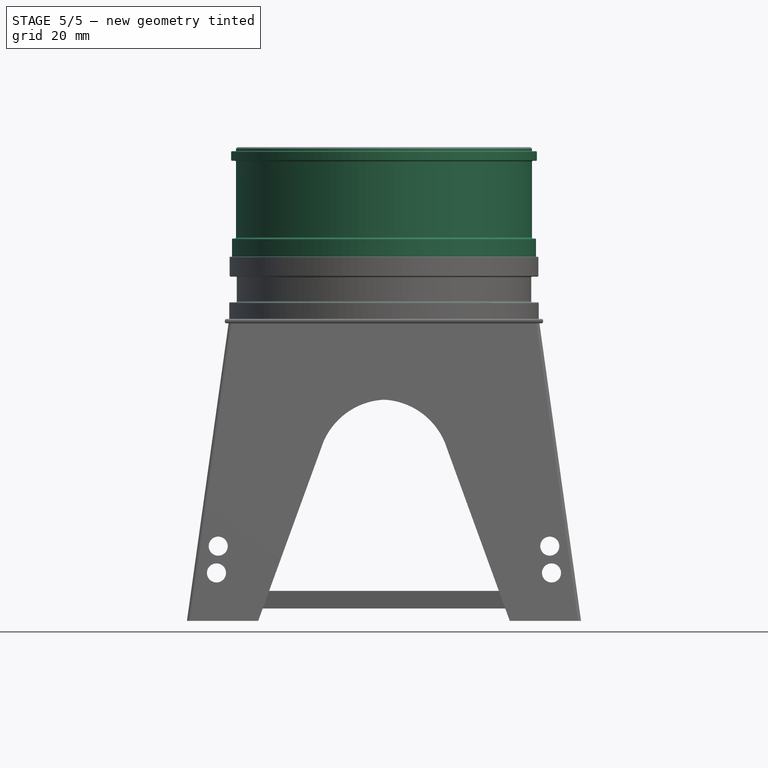
[diagram: stage 5 of 5 — front view after this stage's code; geometry added in this stage tinted green]
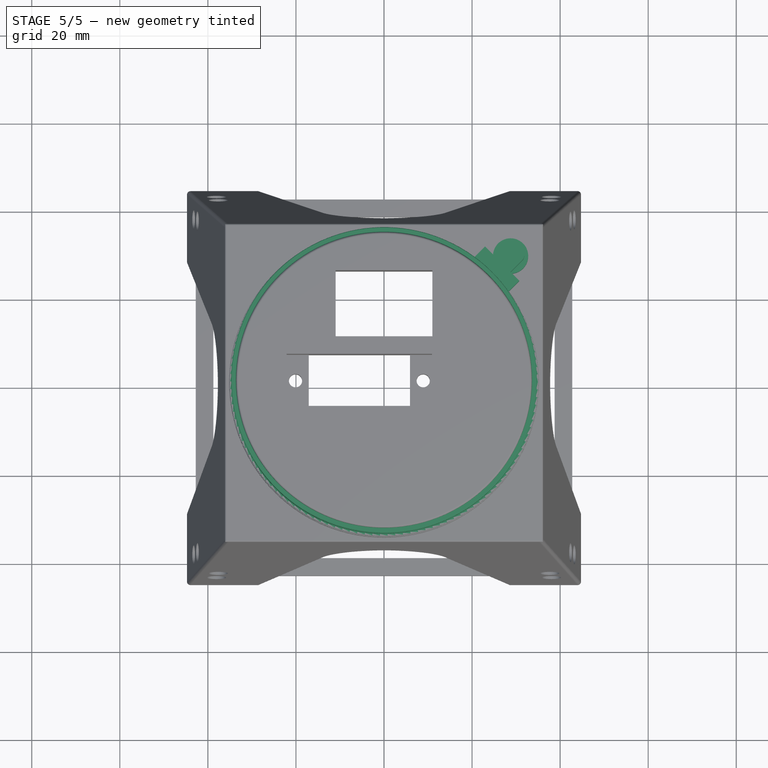
[diagram: stage 5 of 5 — top view after this stage's code; geometry added in this stage tinted green]
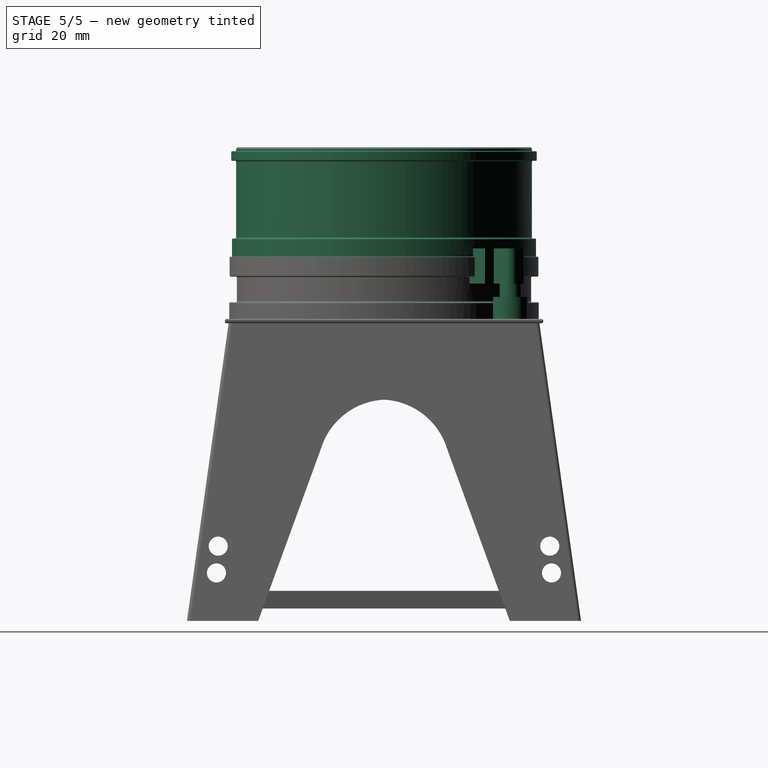
[diagram: stage 5 of 5 — right view after this stage's code; geometry added in this stage tinted green]
FEATURE [Sketcher::SketchObject] Sketch018
  ArcFitTolerance = 1e-06
  AttachmentSupport = -> [XZ_Plane]
  ExternalGeometry = -> [Fillet002]
  FullyConstrained = false
  MakeInternals = false
  MapMode = 5
  Placement = pos=(0,0,0) rot=(1,0,0;1.5708rad)
  sketch-geometry (53):
    g0: LineSegment [constr] StartX=0 StartY=-54.9471 StartZ=0 EndX=86.8083 EndY=-54.9471 EndZ=0
    g1: LineSegment [constr] StartX=0 StartY=-49.1137 StartZ=0 EndX=88.634 EndY=-49.1137 EndZ=0
    g2: LineSegment [constr] StartX=0 StartY=-44.6051 StartZ=0 EndX=88.8834 EndY=-44.6051 EndZ=0
    g3: LineSegment [constr] StartX=0 StartY=-40.4562 StartZ=0 EndX=88.8211 EndY=-40.4562 EndZ=0
    g4: LineSegment [constr] StartX=0 StartY=-22.824 StartZ=0 EndX=91.244 EndY=-22.824 EndZ=0
    g5: LineSegment [constr] StartX=0 StartY=-20.6395 StartZ=0 EndX=91.2505 EndY=-20.6395 EndZ=0
    g6: LineSegment [constr] StartX=0 StartY=-19.4257 StartZ=0 EndX=91.4042 EndY=-19.4257 EndZ=0
    g7: LineSegment StartX=35.148 StartY=-58.7183 StartZ=0 EndX=35.148 EndY=-55.1559 EndZ=0
    g8: LineSegment StartX=34.9392 StartY=-54.9471 StartZ=0 EndX=33.6717 EndY=-54.9471 EndZ=0
    g9: LineSegment StartX=33.4285 StartY=-54.704 StartZ=0 EndX=33.4285 EndY=-49.3121 EndZ=0
    g10: LineSegment StartX=33.6269 StartY=-49.1137 StartZ=0 EndX=34.8312 EndY=-49.1137 EndZ=0
    g11: LineSegment StartX=35.0624 StartY=-48.8825 StartZ=0 EndX=35.0624 EndY=-44.6849 EndZ=0
    g12: LineSegment StartX=34.9826 StartY=-44.6051 StartZ=0 EndX=34.5848 EndY=-44.6051 EndZ=0
    g13: LineSegment StartX=34.5266 StartY=-44.547 StartZ=0 EndX=34.5266 EndY=-40.6923 EndZ=0
    g14: LineSegment StartX=34.2905 StartY=-40.4562 StartZ=0 EndX=33.881 EndY=-40.4562 EndZ=0
    g15: LineSegment StartX=33.601 StartY=-40.1762 StartZ=0 EndX=33.601 EndY=-23.0232 EndZ=0
    g16: LineSegment StartX=33.8003 StartY=-22.824 StartZ=0 EndX=34.4985 EndY=-22.824 EndZ=0
    g17: LineSegment StartX=34.7128 StartY=-22.6097 StartZ=0 EndX=34.7128 EndY=-20.8243 EndZ=0
    g18: LineSegment StartX=34.528 StartY=-20.6395 StartZ=0 EndX=33.734 EndY=-20.6395 EndZ=0
    g19: LineSegment StartX=45.0887 StartY=-16.1541 StartZ=0 EndX=45.0887 EndY=-58.7183 EndZ=0
    g20: LineSegment StartX=45.0887 StartY=-58.7183 StartZ=0 EndX=35.148 EndY=-58.7183 EndZ=0
    g21: LineSegment StartX=33.601 StartY=-20.5065 StartZ=0 EndX=33.601 EndY=-20.222 EndZ=0
    g22: LineSegment StartX=32.3787 StartY=-19.6037 StartZ=0 EndX=32.3787 EndY=-16.1541 EndZ=0
    g23: LineSegment StartX=33.0973 StartY=-19.7183 StartZ=0 EndX=32.4932 EndY=-19.7183 EndZ=0
    g24: LineSegment StartX=32.3787 StartY=-16.1541 StartZ=0 EndX=45.0887 EndY=-16.1541 EndZ=0
    g25: ArcOfCircle CenterX=34.9826 CenterY=-44.6849 CenterZ=0 NormalX=0 NormalY=0 NormalZ=1 AngleXU=0 Radius=0.0798052 StartAngle=0 EndAngle=1.5708
    g26: GeomPoint [constr] X=35.0624 Y=-44.6051 Z=0
    g27: ArcOfCircle CenterX=34.8312 CenterY=-48.8825 CenterZ=0 NormalX=0 NormalY=0 NormalZ=1 AngleXU=0 Radius=0.231185 StartAngle=4.71239 EndAngle=6.28319
    g28: GeomPoint [constr] X=35.0624 Y=-49.1137 Z=0
    g29: ArcOfCircle CenterX=34.5848 CenterY=-44.547 CenterZ=0 NormalX=0 NormalY=0 NormalZ=1 AngleXU=0 Radius=0.0581579 StartAngle=3.14159 EndAngle=4.71239
    g30: GeomPoint [constr] X=34.5266 Y=-44.6051 Z=0
    g31: ArcOfCircle CenterX=34.2905 CenterY=-40.6923 CenterZ=0 NormalX=0 NormalY=0 NormalZ=1 AngleXU=0 Radius=0.236121 StartAngle=0 EndAngle=1.5708
    g32: GeomPoint [constr] X=34.5266 Y=-40.4562 Z=0
    g33: ArcOfCircle CenterX=33.881 CenterY=-40.1762 CenterZ=0 NormalX=0 NormalY=0 NormalZ=1 AngleXU=0 Radius=0.279981 StartAngle=3.14159 EndAngle=4.71239
    g34: GeomPoint [constr] X=33.601 Y=-40.4562 Z=0
    g35: ArcOfCircle CenterX=33.8003 CenterY=-23.0232 CenterZ=0 NormalX=0 NormalY=0 NormalZ=1 AngleXU=0 Radius=0.19927 StartAngle=1.5708 EndAngle=3.14159
    g36: GeomPoint [constr] X=33.601 Y=-22.824 Z=0
    g37: ArcOfCircle CenterX=34.4985 CenterY=-22.6097 CenterZ=0 NormalX=0 NormalY=0 NormalZ=1 AngleXU=0 Radius=0.214311 StartAngle=4.71239 EndAngle=6.28319
    g38: GeomPoint [constr] X=34.7128 Y=-22.824 Z=0
    g39: ArcOfCircle CenterX=34.528 CenterY=-20.8243 CenterZ=0 NormalX=0 NormalY=0 NormalZ=1 AngleXU=0 Radius=0.18485 StartAngle=0 EndAngle=1.5708
    g40: GeomPoint [constr] X=34.7128 Y=-20.6395 Z=0
    g41: ArcOfCircle CenterX=33.734 CenterY=-20.5065 CenterZ=0 NormalX=0 NormalY=0 NormalZ=1 AngleXU=0 Radius=0.132985 StartAngle=3.14159 EndAngle=4.71239
    g42: GeomPoint [constr] X=33.601 Y=-20.6395 Z=0
    g43: ArcOfCircle CenterX=33.0973 CenterY=-20.222 CenterZ=0 NormalX=0 NormalY=0 NormalZ=1 AngleXU=0 Radius=0.503731 StartAngle=1.1e-15 EndAngle=1.5708
    g44: GeomPoint [constr] X=33.601 Y=-19.7183 Z=0
    g45: ArcOfCircle CenterX=32.4932 CenterY=-19.6037 CenterZ=0 NormalX=0 NormalY=0 NormalZ=1 AngleXU=0 Radius=0.11454 StartAngle=3.14159 EndAngle=4.71239
    g46: GeomPoint [constr] X=32.3787 Y=-19.7183 Z=0
    g47: ArcOfCircle CenterX=33.6269 CenterY=-49.3121 CenterZ=0 NormalX=0 NormalY=0 NormalZ=1 AngleXU=0 Radius=0.198378 StartAngle=1.5708 EndAngle=3.14159
    g48: GeomPoint [constr] X=33.4285 Y=-49.1137 Z=0
    g49: ArcOfCircle CenterX=33.6717 CenterY=-54.704 CenterZ=0 NormalX=0 NormalY=0 NormalZ=1 AngleXU=0 Radius=0.243176 StartAngle=3.14159 EndAngle=4.71239
    g50: GeomPoint [constr] X=33.4285 Y=-54.9471 Z=0
    g51: ArcOfCircle CenterX=34.9392 CenterY=-55.1559 CenterZ=0 NormalX=0 NormalY=0 NormalZ=1 AngleXU=0 Radius=0.208786 StartAngle=0 EndAngle=1.5708
    g52: GeomPoint [constr] X=35.148 Y=-54.9471 Z=0
  constraints (100):
    c: PointOnObject(g0,g-2)
    c: Horizontal(g0)
    c: PointOnObject(g1,g-2)
    c: Horizontal(g1)
    c: PointOnObject(g2,g-2)
    c: Horizontal(g2)
    c: PointOnObject(g3,g-2)
    c: Horizontal(g3)
    c: PointOnObject(g4,g-2)
    c: Horizontal(g4)
    c: PointOnObject(g5,g-2)
    c: Horizontal(g5)
    c: PointOnObject(g6,g-2)
    c: Horizontal(g6)
    c: Coincident(g-4,g7)
    c: PointOnObject(g52,g0)
    c: Vertical(g7)
    c: PointOnObject(g50,g0)
    c: PointOnObject(g48,g1)
    c: Vertical(g9)
    c: PointOnObject(g28,g1)
    c: PointOnObject(g26,g2)
    c: Vertical(g11)
    c: PointOnObject(g30,g2)
    c: PointOnObject(g32,g3)
    c: Vertical(g13)
    c: PointOnObject(g34,g3)
    c: PointOnObject(g36,g4)
    c: Vertical(g15)
    c: PointOnObject(g38,g4)
    c: PointOnObject(g40,g5)
    c: Vertical(g17)
    c: PointOnObject(g42,g5)
    c: Vertical(g19)
    c: Coincident(g19,g20)
    c: Coincident(g20,g7)
    c: Horizontal(g20)
    c: PointOnObject(g44,g-5)
    c: PointOnObject(g46,g-5)
    c: Vertical(g22)
    c: Coincident(g24,g22)
    c: Coincident(g24,g19)
    c: Horizontal(g24)
    c: Tangent(g15,g21)
    c: PointOnObject(g26,g11)
    c: PointOnObject(g26,g12)
    c: Tangent(g11,g25) = -1.5708
    c: Tangent(g12,g25) = -1.5708
    c: PointOnObject(g28,g10)
    c: PointOnObject(g28,g11)
    c: Tangent(g10,g27) = -1.5708
    c: Tangent(g11,g27) = -1.5708
    c: PointOnObject(g30,g12)
    c: PointOnObject(g30,g13)
    c: Tangent(g12,g29) = 1.5708
    c: Tangent(g13,g29) = 1.5708
    c: PointOnObject(g32,g13)
    c: PointOnObject(g32,g14)
    c: Tangent(g13,g31) = -1.5708
    c: Tangent(g14,g31) = -1.5708
    c: PointOnObject(g34,g14)
    c: PointOnObject(g34,g15)
    c: Tangent(g14,g33) = 1.5708
    c: Tangent(g15,g33) = 1.5708
    c: PointOnObject(g36,g15)
    c: PointOnObject(g36,g16)
    c: Tangent(g15,g35) = 1.5708
    c: Tangent(g16,g35) = 1.5708
    c: PointOnObject(g38,g16)
    c: PointOnObject(g38,g17)
    c: Tangent(g16,g37) = -1.5708
    c: Tangent(g17,g37) = -1.5708
    c: PointOnObject(g40,g17)
    c: PointOnObject(g40,g18)
    c: Tangent(g17,g39) = -1.5708
    c: Tangent(g18,g39) = -1.5708
    c: PointOnObject(g42,g18)
    c: PointOnObject(g42,g21)
    c: Tangent(g18,g41) = 1.5708
    c: Tangent(g21,g41) = 1.5708
    c: PointOnObject(g44,g21)
    c: PointOnObject(g44,g23)
    c: Tangent(g21,g43) = -1.5708
    c: Tangent(g23,g43) = -1.5708
    c: PointOnObject(g46,g22)
    c: PointOnObject(g46,g23)
    c: Tangent(g22,g45) = 1.5708
    c: Tangent(g23,g45) = 1.5708
    c: PointOnObject(g48,g9)
    c: PointOnObject(g48,g10)
    c: Tangent(g9,g47) = 1.5708
    c: Tangent(g10,g47) = 1.5708
    c: PointOnObject(g50,g8)
    c: PointOnObject(g50,g9)
    c: Tangent(g8,g49) = 1.5708
    c: Tangent(g9,g49) = 1.5708
    c: PointOnObject(g52,g7)
    c: PointOnObject(g52,g8)
    c: Tangent(g7,g51) = -1.5708
    c: Tangent(g8,g51) = -1.5708
FEATURE [Sketcher::SketchObject] Sketch019
  ArcFitTolerance = 1e-06
  AttachmentSupport = -> [Fillet002]
  ExternalGeometry = -> [Fillet002]
  FullyConstrained = true
  MakeInternals = false
  MapMode = 5
  Placement = pos=(0,0,-37.3076) rot=(0.707107,0.707107,0;3.14159rad)
  sketch-geometry (2):
    g0: Circle CenterX=0 CenterY=0 CenterZ=0 NormalX=0 NormalY=0 NormalZ=1 AngleXU=0 Radius=33.148
    g1: Circle CenterX=0 CenterY=0 CenterZ=0 NormalX=0 NormalY=0 NormalZ=1 AngleXU=0 Radius=30.148
  constraints (4):
    c: Coincident(g0,g-1)
    c: Coincident(g1,g0)
    c: Distance(g0,g1) = 3
    c: Tangent(g0,g-3)
FEATURE [PartDesign::Pad] Pad006
  BaseFeature = -> Fillet002
  Direction = (0,0,-1)
  Length = 10
  Length2 = 10
  Placement = pos=(0,0,0) rot=(1,1,1;2.0944rad)
  Profile = -> Sketch019
  ReferenceAxis = -> Sketch019 [N_Axis]
  Refine = true
  Suppressed = false
  Type = 3
  UpToFace = -> Fillet002 [Face107]
FEATURE [PartDesign::Groove] Groove
  Angle = 360
  Angle2 = 60
  Axis = (0,2e-16,1)
  Base = (0,0,0)
  BaseFeature = -> Pad006
  Placement = pos=(0,0,0) rot=(1,1,1;2.0944rad)
  Profile = -> Sketch018
  ReferenceAxis = -> Sketch018 [V_Axis]
  Refine = true
  Suppressed = false
  Type = 0
FEATURE [Sketcher::SketchObject] Sketch020
  ArcFitTolerance = 1e-06
  AttachmentSupport = -> [Groove]
  ExternalGeometry = -> [Groove]
  FullyConstrained = true
  MakeInternals = false
  MapMode = 5
  Placement = pos=(1.96e-14,-6.5e-15,-58.7183) rot=(0,0,-1;1.5708rad)
  sketch-geometry (1):
    g0: Circle CenterX=-28.748 CenterY=28.7489 CenterZ=0 NormalX=0 NormalY=0 NormalZ=1 AngleXU=0 Radius=4
  constraints (3):
    c: Diameter(g0) = 8
    c: Distance(g0,g-3) = 7
    c: Distance(g0,g-4) = 7
FEATURE [PartDesign::Pad] Pad007
  BaseFeature = -> Groove
  Direction = (0,0,1)
  Length = 5
  Length2 = 10
  Placement = pos=(0,0,0) rot=(1,1,1;2.0944rad)
  Profile = -> Sketch020
  ReferenceAxis = -> Sketch020 [N_Axis]
  Refine = true
  Suppressed = false
  Type = 0
FEATURE [Sketcher::SketchObject] Sketch021
  ArcFitTolerance = 1e-06
  AttachmentSupport = -> [Pad007]
  ExternalGeometry = -> [Pad007]
  FullyConstrained = true
  MakeInternals = false
  MapMode = 5
  Placement = pos=(0,0,-53.7183) rot=(0,0,-1;1.5708rad)
  sketch-geometry (1):
    g0: Circle CenterX=-28.748 CenterY=28.7489 CenterZ=0 NormalX=0 NormalY=0 NormalZ=1 AngleXU=0 Radius=2.5
  constraints (2):
    c: Coincident(g0,g-3)
    c: Distance(g0,g-3) = 1.5
FEATURE [PartDesign::Pad] Pad008
  BaseFeature = -> Pad007
  Direction = (0,0,1)
  Length = 3
  Length2 = 10
  Placement = pos=(0,0,0) rot=(1,1,1;2.0944rad)
  Profile = -> Sketch021
  ReferenceAxis = -> Sketch021 [N_Axis]
  Refine = true
  Suppressed = false
  Type = 0
FEATURE [Sketcher::SketchObject] Sketch022
  ArcFitTolerance = 1e-06
  AttachmentSupport = -> [Pad008]
  ExternalGeometry = -> [Pad008]
  FullyConstrained = false
  MakeInternals = false
  MapMode = 5
  Placement = pos=(0,0,-50.7183) rot=(0,0,-1;1.5708rad)
  sketch-geometry (15):
    g0: LineSegment StartX=-29.9505 StartY=31.3647 StartZ=0 EndX=-31.3647 EndY=29.9505 EndZ=0
    g1: LineSegment StartX=-31.3647 StartY=27.5464 StartZ=0 EndX=-28.7484 EndY=24.9301 EndZ=0
    g2: LineSegment StartX=-27.5464 StartY=31.3647 StartZ=0 EndX=-24.9301 EndY=28.7484 EndZ=0
    g3: LineSegment StartX=-24.9301 StartY=28.7484 StartZ=0 EndX=-22.9502 EndY=30.7283 EndZ=0
    g4: LineSegment StartX=-28.7484 StartY=24.9301 StartZ=0 EndX=-30.7283 EndY=22.9502 EndZ=0
    g5: LineSegment StartX=-30.7283 StartY=22.9502 StartZ=0 EndX=-25.5665 EndY=17.7883 EndZ=0
    g6: LineSegment StartX=-22.9502 StartY=30.7283 StartZ=0 EndX=-17.7883 EndY=25.5665 EndZ=0
    g7: LineSegment StartX=-17.7883 StartY=25.5665 StartZ=0 EndX=-25.5665 EndY=17.7883 EndZ=0
    g8: LineSegment [constr] StartX=0 StartY=0 StartZ=0 EndX=-83.2763 EndY=83.2763 EndZ=0
    g9: LineSegment [constr] StartX=-29.0835 StartY=21.3053 StartZ=0 EndX=-25.1944 EndY=25.1944 EndZ=0
    g10: LineSegment [constr] StartX=-25.1944 StartY=25.1944 StartZ=0 EndX=-21.3053 EndY=29.0835 EndZ=0
    g11: ArcOfCircle CenterX=-28.7484 CenterY=30.1627 CenterZ=0 NormalX=0 NormalY=0 NormalZ=1 AngleXU=0 Radius=1.7 StartAngle=0.785398 EndAngle=2.35619
    g12: GeomPoint [constr] X=-28.7484 Y=32.5668 Z=0
    g13: ArcOfCircle CenterX=-30.1627 CenterY=28.7484 CenterZ=0 NormalX=0 NormalY=0 NormalZ=1 AngleXU=0 Radius=1.7 StartAngle=2.35619 EndAngle=3.92699
    g14: GeomPoint [constr] X=-32.5668 Y=28.7484 Z=0
  constraints (40):
    c: Coincident(g2,g3)
    c: Coincident(g1,g4)
    c: Coincident(g4,g5)
    c: Coincident(g3,g6)
    c: Coincident(g6,g7)
    c: Coincident(g7,g5)
    c: Parallel(g0,g7)
    c: Parallel(g2,g1)
    c: Parallel(g3,g4)
    c: Equal(g3,g4)
    c: Equal(g6,g5)
    c: Parallel(g6,g5)
    c: Angle(g3,g2) = 1.5708
    c: Angle(g7,g5) = 1.5708
    c: Coincident(g8,g-1)
    c: Angle(g8,g-1) = 0.785398
    c: PointOnObject(g9,g5)
    c: PointOnObject(g9,g8)
    c: Coincident(g10,g9)
    c: PointOnObject(g10,g6)
    c: Parallel(g10,g0)
    c: Parallel(g0,g9)
    c: Perpendicular(g8,g9)
    c: Equal(g9,g10)
    c: PointOnObject(g12,g0)
    c: PointOnObject(g12,g2)
    c: Tangent(g0,g11) = -1.5708
    c: Tangent(g2,g11) = 1.5708
    c: PointOnObject(g14,g0)
    c: PointOnObject(g14,g1)
    c: Tangent(g0,g13) = -1.5708
    c: Tangent(g1,g13) = -1.5708
    c: Angle(g5,g4) = 1.5708
    c: Distance(g1,g8) = 2.7
    c: Distance(g-3,g0) = 2.7
    c: Radius(g11) = 1.7
    c: Radius(g13) = 1.7
    c: Distance(g7,g7) = 11
    c: Distance(g5,g5) = 7.3
    c: Distance(g1,g1) = 3.7
FEATURE [PartDesign::Pad] Pad009
  BaseFeature = -> Pad008
  Direction = (1,1,1)
  Length = 8
  Length2 = 10
  Placement = pos=(0,0,0) rot=(1,1,1;2.0944rad)
  Profile = -> Sketch022
  ReferenceAxis = -> Sketch022 [N_Axis]
  Refine = true
  Suppressed = false
  Type = 0
FEATURE [PartDesign::Plane] DatumPlane003
  AttachmentOffset = pos=(-69,0,0) rot=(-0.714173,-0.29582,0.634388;1.15687rad)
  AttachmentSupport = -> [Pad009]
  Length = 158.219
  MapMode = 5
  Placement = pos=(-1.1e-15,69,-42.7183) rot=(-0.714173,0.29582,-0.634388;1.15687rad)
  ResizeMode = 0
  Width = 229.686
FEATURE [Sketcher::SketchObject] Sketch023
  ArcFitTolerance = 1e-06
  AttachmentSupport = -> [Pad009]
  ExternalGeometry = -> [Pad009]
  FullyConstrained = false
  MakeInternals = false
  MapMode = 5
  Placement = pos=(1.42e-14,-4.7e-15,-42.7183) rot=(0,0,-1;1.5708rad)
  sketch-geometry (6):
    g0: LineSegment StartX=-28.7484 StartY=24.9301 StartZ=0 EndX=-24.9301 EndY=28.7484 EndZ=0
    g1: LineSegment StartX=-24.9301 StartY=28.7484 StartZ=0 EndX=-27.5464 EndY=31.3648 EndZ=0
    g2: LineSegment StartX=-28.7484 StartY=24.9301 StartZ=0 EndX=-31.3647 EndY=27.5464 EndZ=0
    g3: LineSegment StartX=-31.3647 StartY=29.9505 StartZ=0 EndX=-29.9505 EndY=31.3647 EndZ=0
    g4: ArcOfCircle CenterX=-30.1627 CenterY=28.7484 CenterZ=0 NormalX=0 NormalY=0 NormalZ=1 AngleXU=0 Radius=1.7 StartAngle=2.35619 EndAngle=3.92699
    g5: ArcOfCircle CenterX=-28.7484 CenterY=30.1627 CenterZ=0 NormalX=0 NormalY=0 NormalZ=1 AngleXU=0 Radius=1.7 StartAngle=0.785406 EndAngle=2.3562
  constraints (12):
    c: Coincident(g0,g-5)
    c: Coincident(g0,g1)
    c: PointOnObject(g1,g-4)
    c: Tangent(g1,g-4)
    c: Coincident(g0,g2)
    c: PointOnObject(g2,g-6)
    c: Tangent(g2,g-2)
    c: PointOnObject(g3,g-6)
    c: Coincident(g3,g-4)
    c: Coincident(g4,g-6)
    c: Coincident(g4,g2)
    c: Coincident(g4,g3)
FEATURE [PartDesign::Body] Body
  AllowCompound = false
  Group = -> [Sketch,Pad,Sketch002,Pocket,PolarPattern,Sketch003,Pad001,Sketch004,Pocket001,Sketch005,Pocket002,Sketch006,Pocket003,Sketch008,Sketch009,Pocket004,Sketch010,DatumPlane,Sketch011,SubtractiveLoft,Sketch012,Pocket005,Sketch014,Pad003,PolarPattern001,Sketch015,Pad004,PolarPattern002,Sketch016,Pocket006,PolarPattern003,DatumPlane001,Sketch017,Pad005,Fillet,Fillet001,Fillet002,Sketch018,Sketch019,+11 more]
  Origin = -> Origin
  Tip = -> Pad003
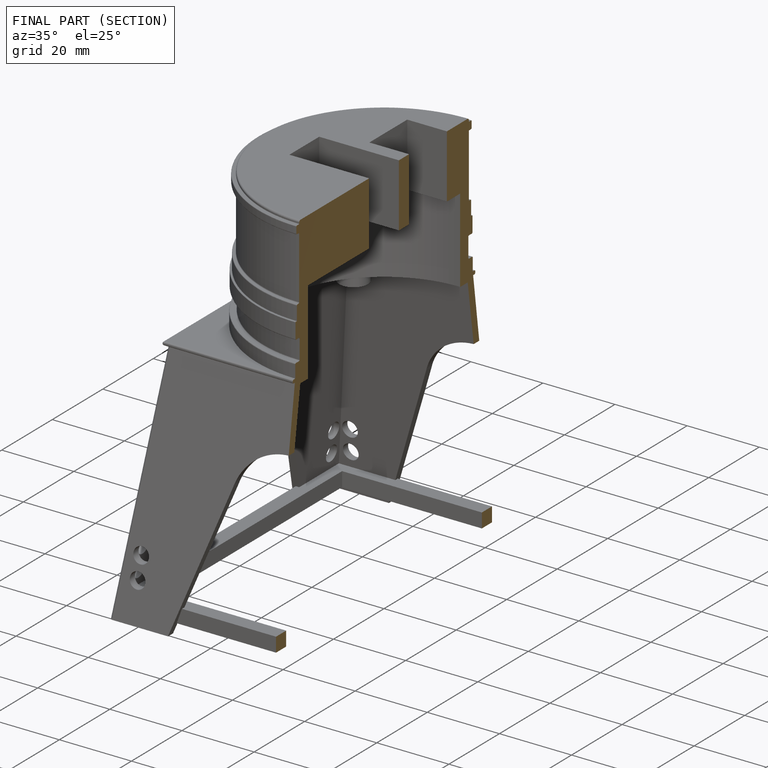
[diagram: finished part — half-section view (interior)]
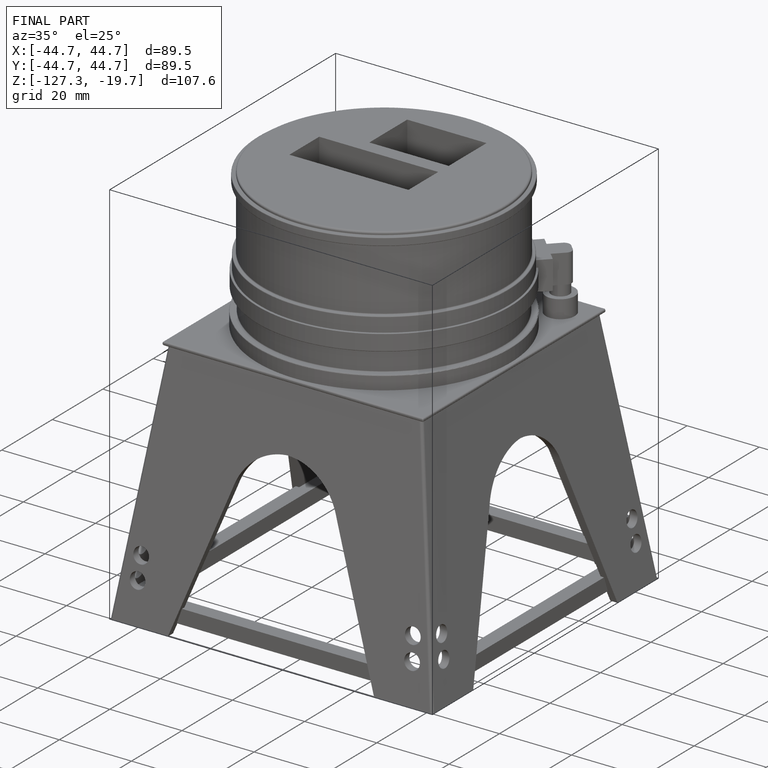
[diagram: finished part — iso view with bounding-box wireframe]
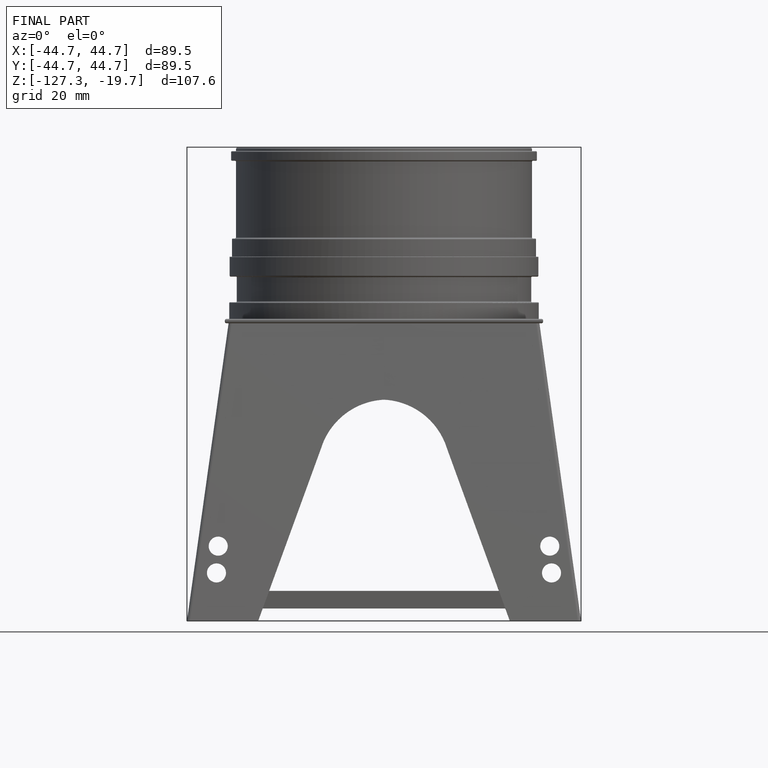
[diagram: finished part — front view with bounding-box wireframe]
